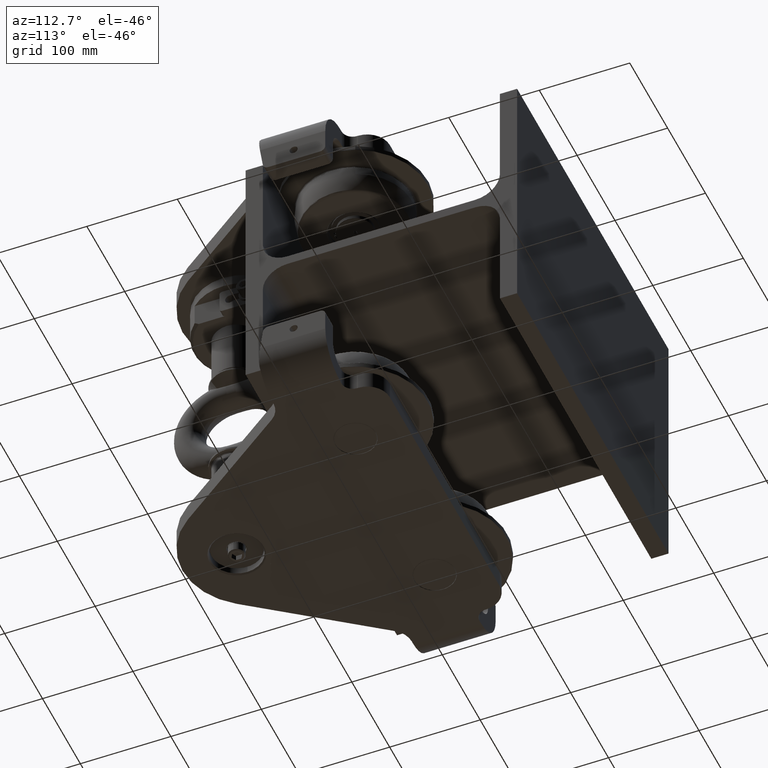
[diagram: clean part render]
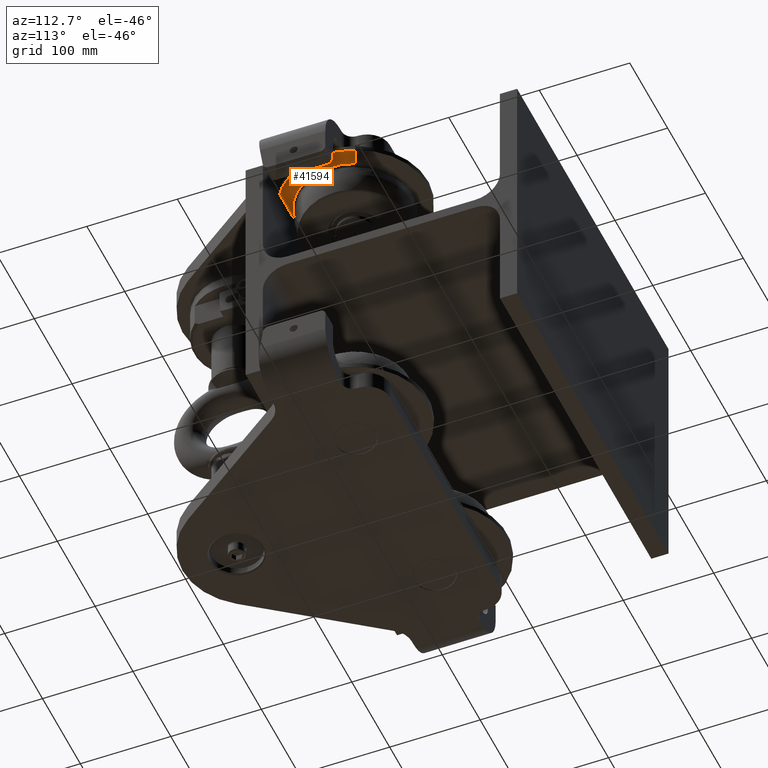
[diagram: same view with one face highlighted and labeled with its STEP entity id]
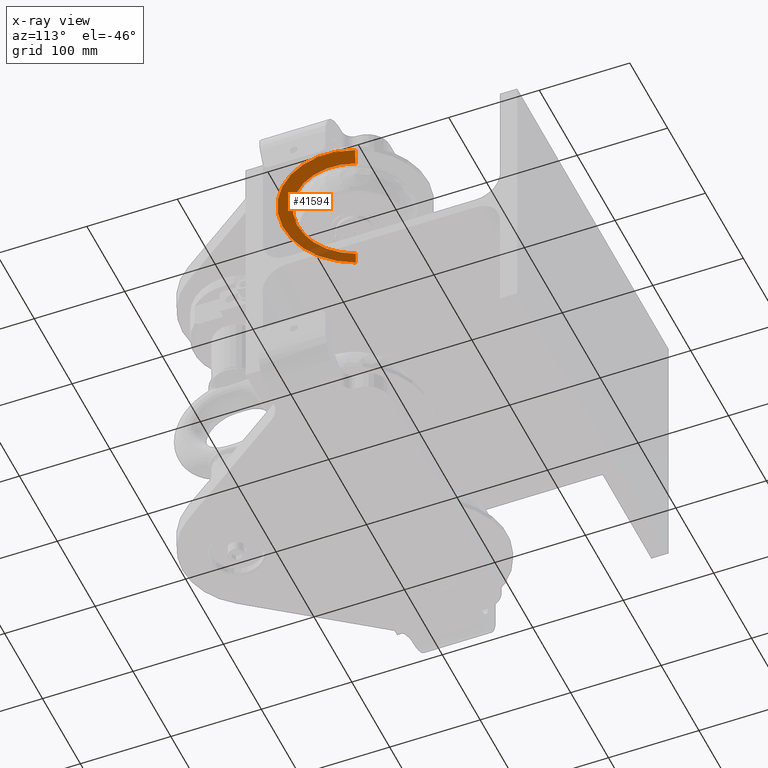
[diagram: x-ray of the same camera — body ghosted, the highlighted face saturated]
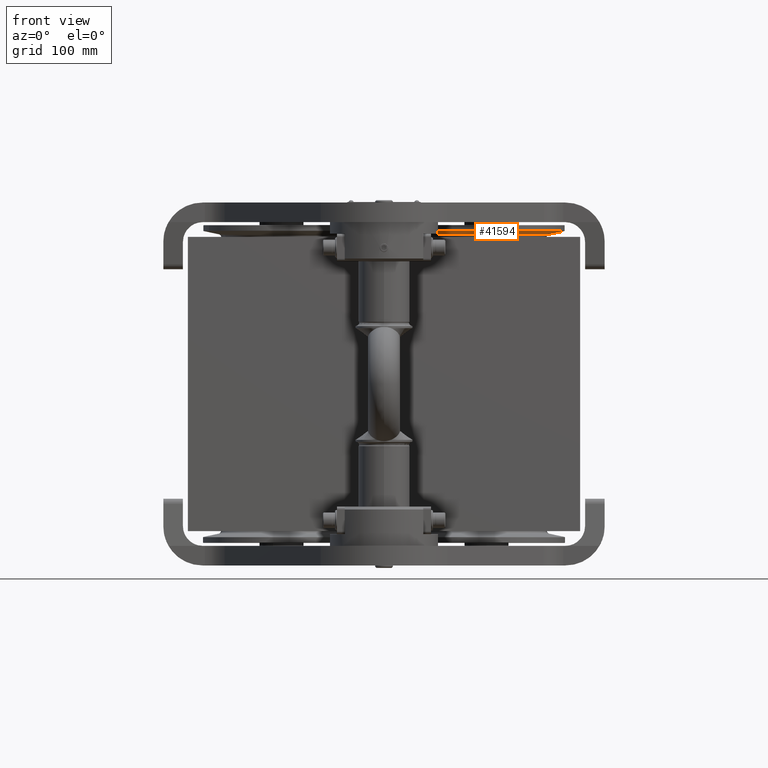
[diagram: same view with one face highlighted and labeled with its STEP entity id]
A machine part, auxiliary view. The second image highlights one B-rep face of the part: STEP entity #41594.
The next image is the same camera in x-ray: the body ghosted, the highlighted face saturated — about 16% of this face is hidden behind the body in this view.
A second angle (front view) of the same face is appended — the face is thin or edge-on in the first view.
In plain terms, the highlighted conical surface has half-angle 78 deg.
Its self-contained STEP definition (entity closure, byte-faithful):
#314 = ORIENTED_EDGE ( 'NONE', *, *, #29045, .T. ) ;
#2188 = DIRECTION ( 'NONE',  ( 0.9237280213470677700, 0.3830490080632387200, 4.336774047869921800E-016 ) ) ;
#4531 = EDGE_CURVE ( 'NONE', #24868, #15101, #9103, .T. ) ;
#6142 = DIRECTION ( 'NONE',  ( -4.535348335754367300E-017, -6.073464467589028900E-016, 1.000000000000000000 ) ) ;
#7029 = DIRECTION ( 'NONE',  ( -0.9035423478112212200, -0.3746784682005215900, 0.2079116908177526800 ) ) ;
#8069 = CARTESIAN_POINT ( 'NONE',  ( 30.82126054220654500, -99.05289805271979700, 155.9597846072458100 ) ) ;
#8434 = VECTOR ( 'NONE', #22183, 1000.000000000000100 ) ;
#9103 = LINE ( 'NONE', #29709, #8434 ) ;
#10262 = CARTESIAN_POINT ( 'NONE',  ( 104.5000000000000600, -68.49999999999992900, 152.6094973562555600 ) ) ;
#11069 = EDGE_CURVE ( 'NONE', #22200, #12135, #17377, .T. ) ;
#12135 = VERTEX_POINT ( 'NONE', #8069 ) ;
#15101 = VERTEX_POINT ( 'NONE', #49824 ) ;
#17377 = LINE ( 'NONE', #23132, #36603 ) ;
#18913 = CIRCLE ( 'NONE', #28842, 79.76237350724531400 ) ;
#22183 = DIRECTION ( 'NONE',  ( 0.9035423478112211100, 0.3746784682005214200, 0.2079116908177532100 ) ) ;
#22200 = VERTEX_POINT ( 'NONE', #46560 ) ;
#22250 = CARTESIAN_POINT ( 'NONE',  ( 163.6190656044592500, -43.98466765748875000, 152.6094973562555600 ) ) ;
#22364 = EDGE_CURVE ( 'NONE', #15101, #12135, #18913, .T. ) ;
#22821 = DIRECTION ( 'NONE',  ( 4.535348335754367300E-017, 6.073464467589028900E-016, -1.000000000000000000 ) ) ;
#23132 = CARTESIAN_POINT ( 'NONE',  ( 45.38093439554080500, -93.01533234251113000, 152.6094973562555300 ) ) ;
#23210 = AXIS2_PLACEMENT_3D ( 'NONE', #10262, #31177, #27258 ) ;
#24868 = VERTEX_POINT ( 'NONE', #22250 ) ;
#27258 = DIRECTION ( 'NONE',  ( 0.9237280213470677700, 0.3830490080632387200, 4.336774047869921800E-016 ) ) ;
#28842 = AXIS2_PLACEMENT_3D ( 'NONE', #42942, #22821, #51064 ) ;
#29045 = EDGE_CURVE ( 'NONE', #22200, #24868, #51964, .T. ) ;
#29709 = CARTESIAN_POINT ( 'NONE',  ( 163.6190656044593100, -43.98466765748873500, 152.6094973562555900 ) ) ;
#31177 = DIRECTION ( 'NONE',  ( -4.535348335754367300E-017, -6.073464467589028900E-016, 1.000000000000000000 ) ) ;
#32387 = EDGE_LOOP ( 'NONE', ( #33715, #314, #36904, #50852 ) ) ;
#33715 = ORIENTED_EDGE ( 'NONE', *, *, #11069, .F. ) ;
#34868 = CARTESIAN_POINT ( 'NONE',  ( 104.5000000000000600, -68.49999999999992900, 152.6094973562555600 ) ) ;
#36603 = VECTOR ( 'NONE', #7029, 1000.000000000000200 ) ;
#36904 = ORIENTED_EDGE ( 'NONE', *, *, #4531, .T. ) ;
#41594 = ADVANCED_FACE ( 'NONE', ( #43024 ), #43687, .T. ) ;
#42942 = CARTESIAN_POINT ( 'NONE',  ( 104.5000000000000600, -68.49999999999992900, 155.9597846072458400 ) ) ;
#43024 = FACE_OUTER_BOUND ( 'NONE', #32387, .T. ) ;
#43687 = CONICAL_SURFACE ( 'NONE', #23210, 64.00051123083417800, 1.361356816555583600 ) ;
#46154 = AXIS2_PLACEMENT_3D ( 'NONE', #34868, #6142, #2188 ) ;
#46560 = CARTESIAN_POINT ( 'NONE',  ( 45.38093439554080500, -93.01533234251111500, 152.6094973562555300 ) ) ;
#49824 = CARTESIAN_POINT ( 'NONE',  ( 178.1787394577934800, -37.94710194728009600, 155.9597846072458700 ) ) ;
#50852 = ORIENTED_EDGE ( 'NONE', *, *, #22364, .T. ) ;
#51064 = DIRECTION ( 'NONE',  ( -0.9237280213470678800, -0.3830490080632386600, -3.479783060004815700E-016 ) ) ;
#51964 = CIRCLE ( 'NONE', #46154, 64.00051123083417800 ) ;